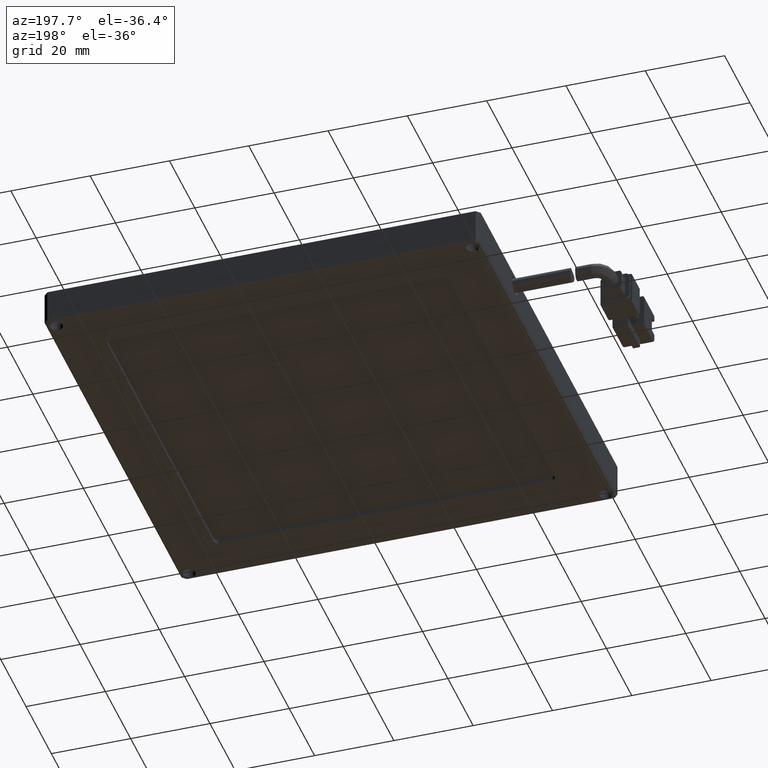
[diagram: clean part render]
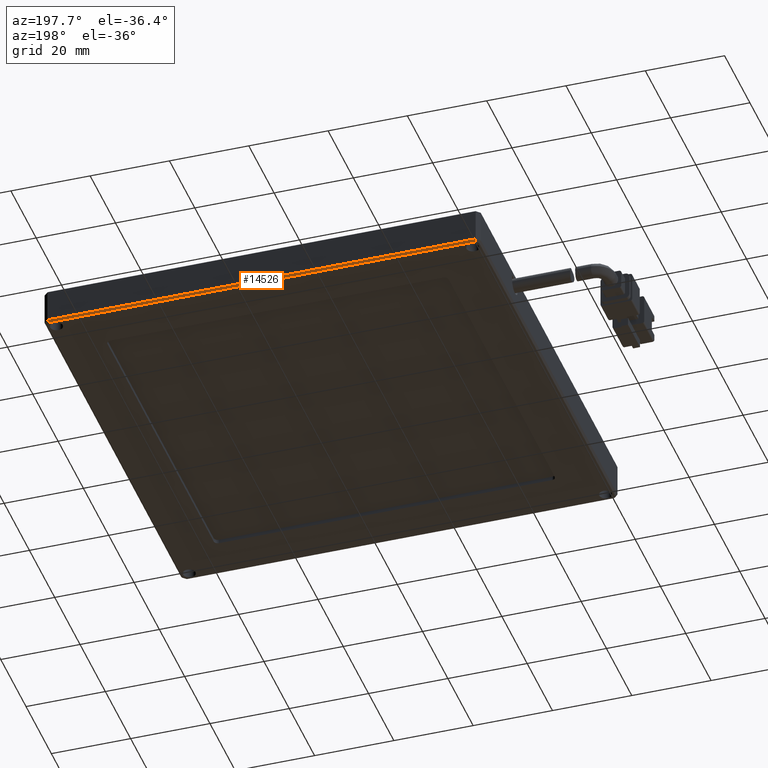
[diagram: same view with one face highlighted and labeled with its STEP entity id]
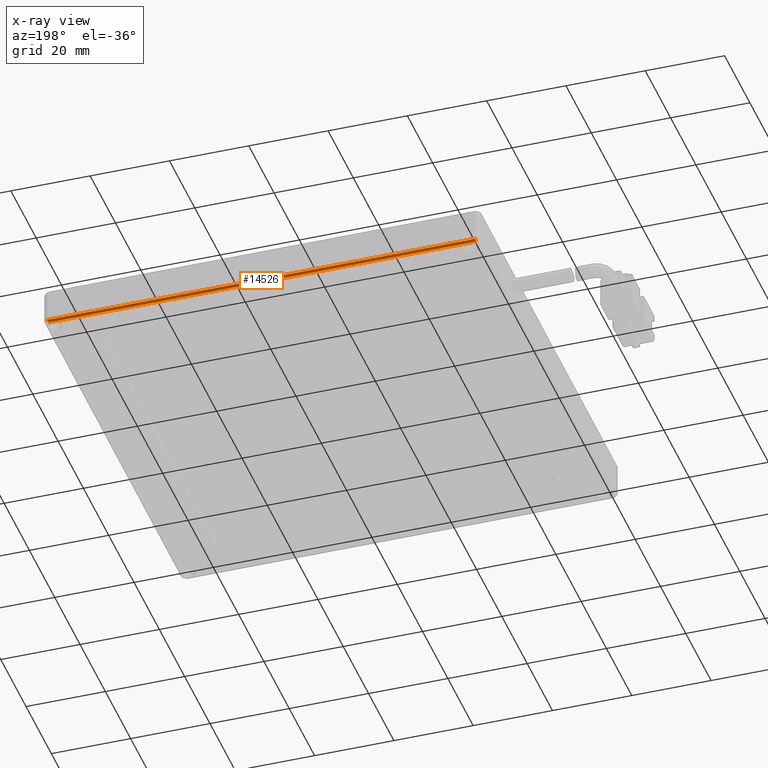
[diagram: x-ray of the same camera — body ghosted, the highlighted face saturated]
A machine part, auxiliary view. The second image highlights one B-rep face of the part: STEP entity #14526.
The next image is the same camera in x-ray: the body ghosted, the highlighted face saturated — about 0% of this face is hidden behind the body in this view.
In plain terms, the highlighted planar face has unit normal (0, 0.7071, -0.7071).
Its self-contained STEP definition (entity closure, byte-faithful):
#248 = LINE ( 'NONE', #709, #7678 ) ;
#709 = CARTESIAN_POINT ( 'NONE',  ( -5.145093547159993900, 63.40015273004998200, -7.000000000023993300 ) ) ;
#2891 = ORIENTED_EDGE ( 'NONE', *, *, #4264, .T. ) ;
#3133 = VECTOR ( 'NONE', #6224, 1000.000000000000000 ) ;
#3349 = EDGE_CURVE ( 'NONE', #17457, #10105, #13096, .T. ) ;
#4264 = EDGE_CURVE ( 'NONE', #10105, #10698, #248, .T. ) ;
#4608 = EDGE_LOOP ( 'NONE', ( #17713, #4989, #10168, #2891 ) ) ;
#4989 = ORIENTED_EDGE ( 'NONE', *, *, #7865, .F. ) ;
#6224 = DIRECTION ( 'NONE',  ( 1.000000000000000000, -0.0000000000000000000, -0.0000000000000000000 ) ) ;
#6774 = PLANE ( 'NONE',  #10144 ) ;
#6833 = DIRECTION ( 'NONE',  ( 0.0000000000000000000, 0.7071067811833172700, -0.7071067811897777700 ) ) ;
#7011 = CARTESIAN_POINT ( 'NONE',  ( -58.93798676597300800, 62.90015273004782900, -7.500000000023389300 ) ) ;
#7678 = VECTOR ( 'NONE', #10423, 1000.000000000000000 ) ;
#7865 = EDGE_CURVE ( 'NONE', #17457, #11897, #13710, .T. ) ;
#8003 = VECTOR ( 'NONE', #14302, 1000.000000000000100 ) ;
#8711 = FACE_OUTER_BOUND ( 'NONE', #4608, .T. ) ;
#9480 = VECTOR ( 'NONE', #9814, 1000.000000000000200 ) ;
#9753 = CARTESIAN_POINT ( 'NONE',  ( -58.93798676597329900, 62.90015273004932800, -7.500000000023732100 ) ) ;
#9814 = DIRECTION ( 'NONE',  ( -0.2810846377143063100, 0.6785983445490528800, 0.6785983445428539500 ) ) ;
#10105 = VERTEX_POINT ( 'NONE', #15531 ) ;
#10144 = AXIS2_PLACEMENT_3D ( 'NONE', #15038, #6833, #16433 ) ;
#10168 = ORIENTED_EDGE ( 'NONE', *, *, #3349, .T. ) ;
#10423 = DIRECTION ( 'NONE',  ( 1.000000000000000000, 0.0000000000000000000, 0.0000000000000000000 ) ) ;
#10698 = VERTEX_POINT ( 'NONE', #13489 ) ;
#11897 = VERTEX_POINT ( 'NONE', #16806 ) ;
#13096 = LINE ( 'NONE', #7011, #9480 ) ;
#13489 = CARTESIAN_POINT ( 'NONE',  ( 48.85490645284419000, 63.40015273005020200, -7.000000000024219700 ) ) ;
#13710 = LINE ( 'NONE', #14478, #3133 ) ;
#14302 = DIRECTION ( 'NONE',  ( -0.2810846377305862800, -0.6785983445456812400, -0.6785983445394823100 ) ) ;
#14478 = CARTESIAN_POINT ( 'NONE',  ( -5.145093547159997400, 62.90015273004998200, -7.500000000023999500 ) ) ;
#14526 = ADVANCED_FACE ( 'NONE', ( #8711 ), #6774, .T. ) ;
#15038 = CARTESIAN_POINT ( 'NONE',  ( -61.30509354716000600, 62.76786137405000700, -7.632291356020000500 ) ) ;
#15277 = LINE ( 'NONE', #15738, #8003 ) ;
#15406 = EDGE_CURVE ( 'NONE', #10698, #11897, #15277, .T. ) ;
#15531 = CARTESIAN_POINT ( 'NONE',  ( -59.14509354715928400, 63.40015273005006700, -7.000000000024736700 ) ) ;
#15738 = CARTESIAN_POINT ( 'NONE',  ( 48.85490645283996300, 63.40015273005218400, -7.000000000023598900 ) ) ;
#16433 = DIRECTION ( 'NONE',  ( 0.0000000000000000000, 0.7071067811897777700, 0.7071067811833172700 ) ) ;
#16806 = CARTESIAN_POINT ( 'NONE',  ( 48.64779967164026400, 62.90015273004934200, -7.500000000023728600 ) ) ;
#17457 = VERTEX_POINT ( 'NONE', #9753 ) ;
#17713 = ORIENTED_EDGE ( 'NONE', *, *, #15406, .T. ) ;